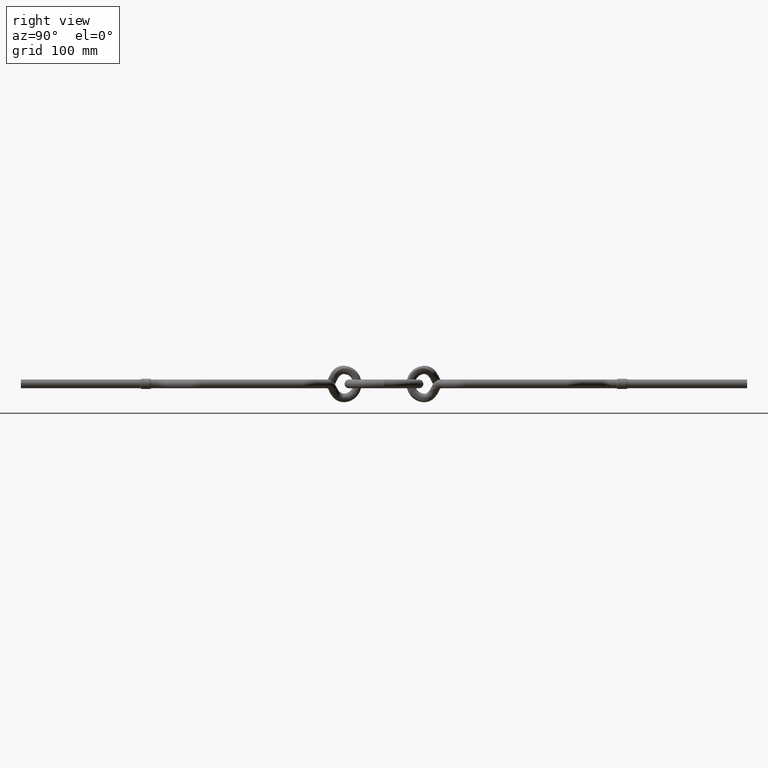
[diagram: clean part render]
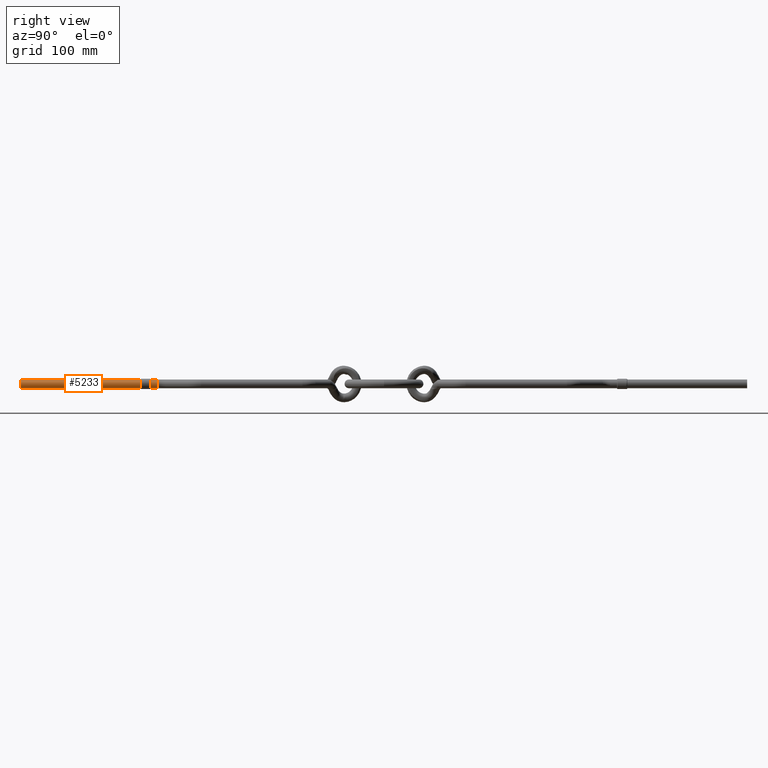
[diagram: same view with one face highlighted and labeled with its STEP entity id]
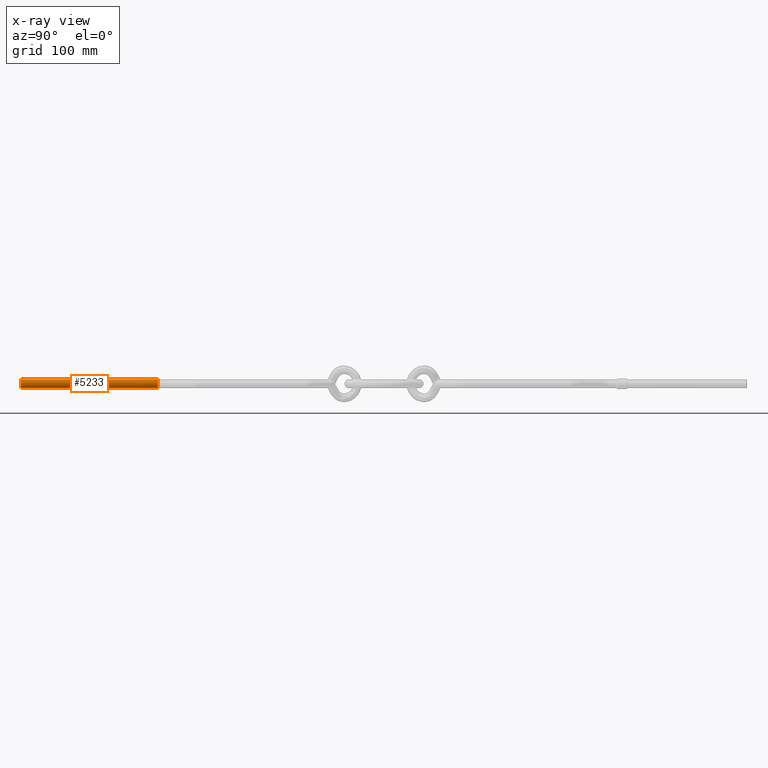
[diagram: x-ray of the same camera — body ghosted, the highlighted face saturated]
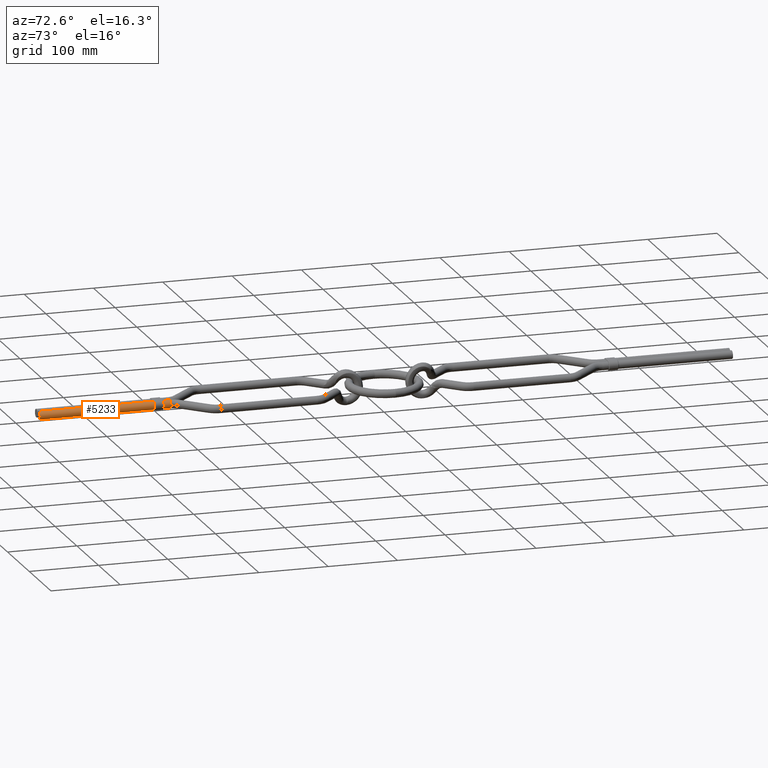
[diagram: same view with one face highlighted and labeled with its STEP entity id]
A machine part, right view. The second image highlights one B-rep face of the part: STEP entity #5233.
The next image is the same camera in x-ray: the body ghosted, the highlighted face saturated — about 0% of this face is hidden behind the body in this view.
A second angle (auxiliary view) of the same face is appended — the face is thin or edge-on in the first view.
In plain terms, the highlighted cylindrical surface (edge-blend (fillet) strip) has radius 6 mm, axis along (-0, -1, -0).
Its self-contained STEP definition (entity closure, byte-faithful):
#537 = CIRCLE ( 'NONE', #11025, 6.000000000000000900 ) ;
#1132 = CARTESIAN_POINT ( 'NONE',  ( 6.000000000000000000, 0.0000000000000000000, -6.000000000000000900 ) ) ;
#1434 = CARTESIAN_POINT ( 'NONE',  ( 6.000000000000000900, 188.5142448000000000, 6.000000000000000900 ) ) ;
#2125 = VECTOR ( 'NONE', #13264, 1000.000000000000000 ) ;
#2239 = VERTEX_POINT ( 'NONE', #3922 ) ;
#2584 = CARTESIAN_POINT ( 'NONE',  ( 6.000000000000000000, 188.5142448000000000, -6.000000000000000900 ) ) ;
#2671 = CARTESIAN_POINT ( 'NONE',  ( 6.000000000000000000, 188.5142448000000000, 0.0000000000000000000 ) ) ;
#2783 = EDGE_CURVE ( 'NONE', #7214, #11359, #6695, .T. ) ;
#3091 = CYLINDRICAL_SURFACE ( 'NONE', #6513, 6.000000000000000900 ) ;
#3515 = ORIENTED_EDGE ( 'NONE', *, *, #4550, .F. ) ;
#3757 = DIRECTION ( 'NONE',  ( 0.0000000000000000000, 1.000000000000000000, 0.0000000000000000000 ) ) ;
#3922 = CARTESIAN_POINT ( 'NONE',  ( 12.00000000000000200, 188.5142448000000000, 7.347880794884122700E-016 ) ) ;
#3987 = DIRECTION ( 'NONE',  ( 0.0000000000000000000, 0.0000000000000000000, 1.000000000000000000 ) ) ;
#4441 = ORIENTED_EDGE ( 'NONE', *, *, #11842, .T. ) ;
#4509 = CARTESIAN_POINT ( 'NONE',  ( 6.000000000000000000, 188.5142448000000000, 0.0000000000000000000 ) ) ;
#4550 = EDGE_CURVE ( 'NONE', #16295, #2239, #15322, .T. ) ;
#4613 = DIRECTION ( 'NONE',  ( 0.0000000000000000000, 1.000000000000000000, 0.0000000000000000000 ) ) ;
#4678 = EDGE_CURVE ( 'NONE', #15455, #11359, #537, .T. ) ;
#4792 = CARTESIAN_POINT ( 'NONE',  ( 6.000000000000000900, 188.5142448000000000, 6.000000000000000900 ) ) ;
#5233 = ADVANCED_FACE ( 'NONE', ( #10081 ), #3091, .T. ) ;
#5417 = ORIENTED_EDGE ( 'NONE', *, *, #10620, .F. ) ;
#6513 = AXIS2_PLACEMENT_3D ( 'NONE', #4509, #12389, #11062 ) ;
#6695 = LINE ( 'NONE', #13480, #7117 ) ;
#6941 = DIRECTION ( 'NONE',  ( -0.0000000000000000000, -1.000000000000000000, -0.0000000000000000000 ) ) ;
#7117 = VECTOR ( 'NONE', #6941, 1000.000000000000000 ) ;
#7214 = VERTEX_POINT ( 'NONE', #2584 ) ;
#8269 = CARTESIAN_POINT ( 'NONE',  ( 6.000000000000000900, 0.0000000000000000000, 6.000000000000000900 ) ) ;
#8689 = LINE ( 'NONE', #1434, #2125 ) ;
#9260 = AXIS2_PLACEMENT_3D ( 'NONE', #12486, #4613, #13815 ) ;
#9585 = ORIENTED_EDGE ( 'NONE', *, *, #4678, .T. ) ;
#9951 = AXIS2_PLACEMENT_3D ( 'NONE', #2671, #11869, #3987 ) ;
#10081 = FACE_OUTER_BOUND ( 'NONE', #10910, .T. ) ;
#10620 = EDGE_CURVE ( 'NONE', #2239, #7214, #10682, .T. ) ;
#10682 = CIRCLE ( 'NONE', #9951, 6.000000000000000900 ) ;
#10910 = EDGE_LOOP ( 'NONE', ( #3515, #4441, #9585, #15315, #5417 ) ) ;
#11025 = AXIS2_PLACEMENT_3D ( 'NONE', #11634, #3757, #12935 ) ;
#11062 = DIRECTION ( 'NONE',  ( 0.0000000000000000000, 0.0000000000000000000, -1.000000000000000000 ) ) ;
#11359 = VERTEX_POINT ( 'NONE', #1132 ) ;
#11634 = CARTESIAN_POINT ( 'NONE',  ( 6.000000000000000000, 0.0000000000000000000, 0.0000000000000000000 ) ) ;
#11842 = EDGE_CURVE ( 'NONE', #16295, #15455, #8689, .T. ) ;
#11869 = DIRECTION ( 'NONE',  ( 0.0000000000000000000, 1.000000000000000000, 0.0000000000000000000 ) ) ;
#12389 = DIRECTION ( 'NONE',  ( -0.0000000000000000000, -1.000000000000000000, -0.0000000000000000000 ) ) ;
#12486 = CARTESIAN_POINT ( 'NONE',  ( 6.000000000000000000, 188.5142448000000000, 0.0000000000000000000 ) ) ;
#12935 = DIRECTION ( 'NONE',  ( 0.0000000000000000000, 0.0000000000000000000, 1.000000000000000000 ) ) ;
#13264 = DIRECTION ( 'NONE',  ( -0.0000000000000000000, -1.000000000000000000, -0.0000000000000000000 ) ) ;
#13480 = CARTESIAN_POINT ( 'NONE',  ( 6.000000000000000000, 188.5142448000000000, -6.000000000000000900 ) ) ;
#13815 = DIRECTION ( 'NONE',  ( 0.0000000000000000000, 0.0000000000000000000, 1.000000000000000000 ) ) ;
#15315 = ORIENTED_EDGE ( 'NONE', *, *, #2783, .F. ) ;
#15322 = CIRCLE ( 'NONE', #9260, 6.000000000000000900 ) ;
#15455 = VERTEX_POINT ( 'NONE', #8269 ) ;
#16295 = VERTEX_POINT ( 'NONE', #4792 ) ;